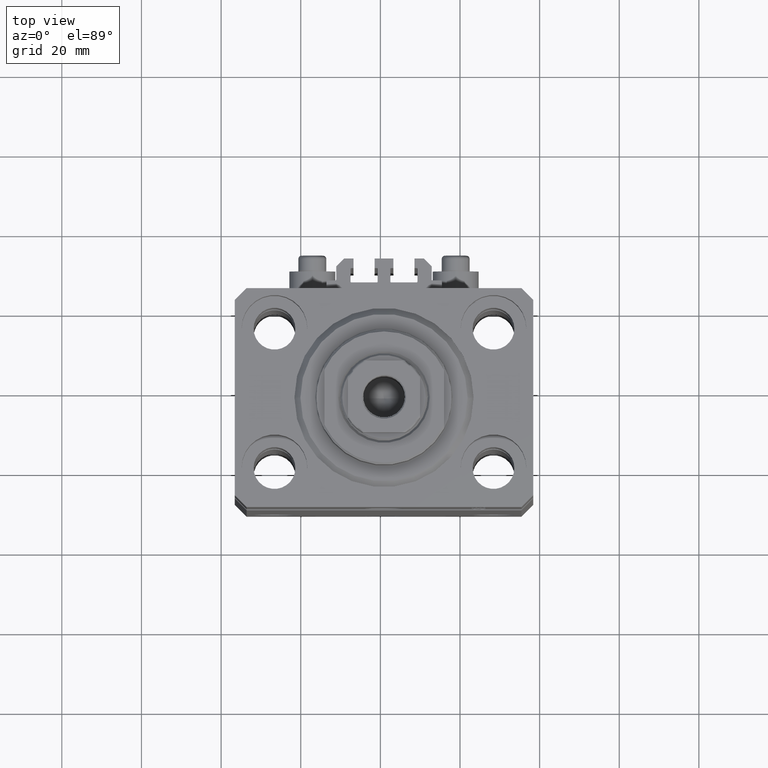
[diagram: clean part render]
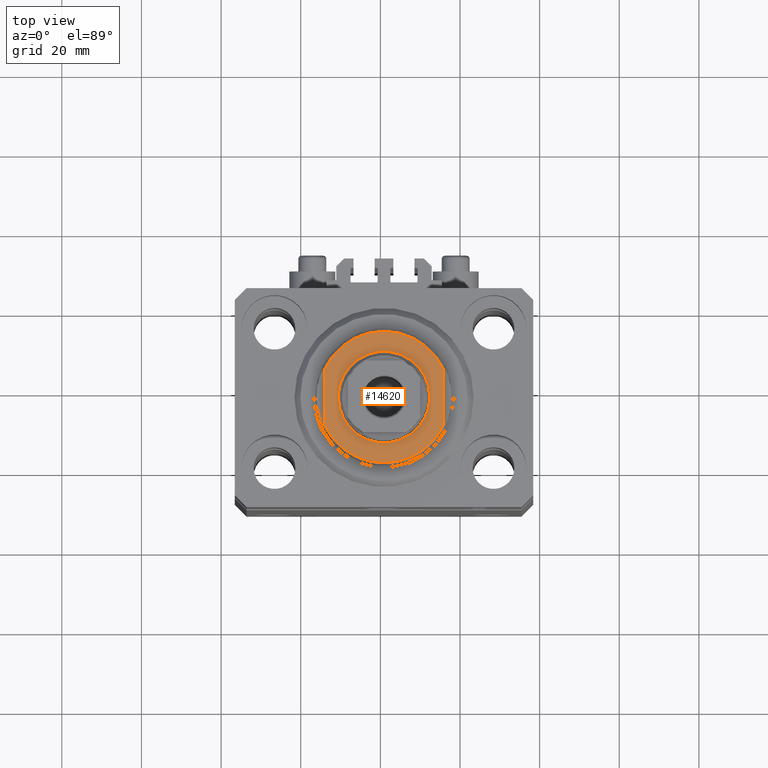
[diagram: same view with one face highlighted and labeled with its STEP entity id]
A machine part, top view. The second image highlights one B-rep face of the part: STEP entity #14620.
In plain terms, the highlighted planar face has unit normal (0, 0, 1).
Its self-contained STEP definition (entity closure, byte-faithful):
#348 = AXIS2_PLACEMENT_3D ( 'NONE', #25707, #17791, #7041 ) ;
#1757 = DIRECTION ( 'NONE',  ( -1.000000000000000000, 0.000000000000000000, 0.000000000000000000 ) ) ;
#1916 = VERTEX_POINT ( 'NONE', #27202 ) ;
#1926 = DIRECTION ( 'NONE',  ( -1.000000000000000000, 0.000000000000000000, 0.000000000000000000 ) ) ;
#2043 = VERTEX_POINT ( 'NONE', #18310 ) ;
#2745 = CARTESIAN_POINT ( 'NONE',  ( 0.000000000000000000, 0.000000000000000000, -8.000000000000000000 ) ) ;
#2994 = DIRECTION ( 'NONE',  ( -1.000000000000000000, 0.000000000000000000, -0.000000000000000000 ) ) ;
#3282 = ORIENTED_EDGE ( 'NONE', *, *, #20680, .T. ) ;
#3696 = EDGE_CURVE ( 'NONE', #21424, #2043, #45911, .T. ) ;
#5536 = CARTESIAN_POINT ( 'NONE',  ( -11.50000000000000355, 0.000000000000000000, -8.000000000000000000 ) ) ;
#5855 = AXIS2_PLACEMENT_3D ( 'NONE', #41512, #34557, #1757 ) ;
#5928 = CARTESIAN_POINT ( 'NONE',  ( -15.00000000000000000, -42.42640687119285303, -8.000000000000000000 ) ) ;
#6040 = VERTEX_POINT ( 'NONE', #10299 ) ;
#6049 = AXIS2_PLACEMENT_3D ( 'NONE', #46238, #28031, #31156 ) ;
#6334 = FACE_OUTER_BOUND ( 'NONE', #21813, .T. ) ;
#6971 = DIRECTION ( 'NONE',  ( 0.000000000000000000, -1.000000000000000000, -0.000000000000000000 ) ) ;
#7041 = DIRECTION ( 'NONE',  ( -1.000000000000000000, 0.000000000000000000, 0.000000000000000000 ) ) ;
#10299 = CARTESIAN_POINT ( 'NONE',  ( 14.99999999999999645, 6.873863542433765517, -8.000000000000000000 ) ) ;
#12236 = VECTOR ( 'NONE', #6971, 1000.000000000000000 ) ;
#14486 = CARTESIAN_POINT ( 'NONE',  ( -14.99999999999999645, 6.873863542433765517, -8.000000000000000000 ) ) ;
#14620 = ADVANCED_FACE ( 'NONE', ( #35545, #6334 ), #46091, .T. ) ;
#15152 = EDGE_CURVE ( 'NONE', #27129, #34668, #38656, .T. ) ;
#15814 = CARTESIAN_POINT ( 'NONE',  ( 0.000000000000000000, 0.000000000000000000, -8.000000000000000000 ) ) ;
#17791 = DIRECTION ( 'NONE',  ( 0.000000000000000000, 0.000000000000000000, -1.000000000000000000 ) ) ;
#18310 = CARTESIAN_POINT ( 'NONE',  ( -14.99999999999999645, -6.873863542433765517, -8.000000000000000000 ) ) ;
#20094 = DIRECTION ( 'NONE',  ( -0.000000000000000000, -0.000000000000000000, 1.000000000000000000 ) ) ;
#20680 = EDGE_CURVE ( 'NONE', #21424, #6040, #30334, .T. ) ;
#21424 = VERTEX_POINT ( 'NONE', #14486 ) ;
#21799 = LINE ( 'NONE', #22511, #12236 ) ;
#21813 = EDGE_LOOP ( 'NONE', ( #3282, #40021, #28363, #36906 ) ) ;
#22511 = CARTESIAN_POINT ( 'NONE',  ( 15.00000000000000000, -42.42640687119285303, -8.000000000000000000 ) ) ;
#24934 = VECTOR ( 'NONE', #31535, 1000.000000000000000 ) ;
#25707 = CARTESIAN_POINT ( 'NONE',  ( 0.000000000000000000, 0.000000000000000000, -8.000000000000000000 ) ) ;
#27129 = VERTEX_POINT ( 'NONE', #5536 ) ;
#27195 = EDGE_CURVE ( 'NONE', #34668, #27129, #30535, .T. ) ;
#27202 = CARTESIAN_POINT ( 'NONE',  ( 14.99999999999999645, -6.873863542433765517, -8.000000000000000000 ) ) ;
#27218 = AXIS2_PLACEMENT_3D ( 'NONE', #15814, #20094, #1926 ) ;
#28031 = DIRECTION ( 'NONE',  ( -0.000000000000000000, -0.000000000000000000, 1.000000000000000000 ) ) ;
#28363 = ORIENTED_EDGE ( 'NONE', *, *, #40565, .T. ) ;
#29426 = EDGE_CURVE ( 'NONE', #6040, #1916, #21799, .T. ) ;
#30237 = AXIS2_PLACEMENT_3D ( 'NONE', #2745, #39866, #2994 ) ;
#30334 = CIRCLE ( 'NONE', #5855, 16.50000000000000000 ) ;
#30535 = CIRCLE ( 'NONE', #6049, 11.50000000000000355 ) ;
#31156 = DIRECTION ( 'NONE',  ( -1.000000000000000000, 0.000000000000000000, 0.000000000000000000 ) ) ;
#31288 = EDGE_LOOP ( 'NONE', ( #39636, #43548 ) ) ;
#31535 = DIRECTION ( 'NONE',  ( -0.000000000000000000, -1.000000000000000000, -0.000000000000000000 ) ) ;
#32595 = CARTESIAN_POINT ( 'NONE',  ( 11.50000000000000355, 1.408343819019456570E-15, -8.000000000000000000 ) ) ;
#34557 = DIRECTION ( 'NONE',  ( 0.000000000000000000, 0.000000000000000000, -1.000000000000000000 ) ) ;
#34668 = VERTEX_POINT ( 'NONE', #32595 ) ;
#35545 = FACE_BOUND ( 'NONE', #31288, .T. ) ;
#36906 = ORIENTED_EDGE ( 'NONE', *, *, #3696, .F. ) ;
#38656 = CIRCLE ( 'NONE', #27218, 11.50000000000000355 ) ;
#39636 = ORIENTED_EDGE ( 'NONE', *, *, #15152, .T. ) ;
#39866 = DIRECTION ( 'NONE',  ( 0.000000000000000000, 0.000000000000000000, -1.000000000000000000 ) ) ;
#40021 = ORIENTED_EDGE ( 'NONE', *, *, #29426, .T. ) ;
#40565 = EDGE_CURVE ( 'NONE', #1916, #2043, #44679, .T. ) ;
#41512 = CARTESIAN_POINT ( 'NONE',  ( 0.000000000000000000, 0.000000000000000000, -8.000000000000000000 ) ) ;
#43548 = ORIENTED_EDGE ( 'NONE', *, *, #27195, .T. ) ;
#44679 = CIRCLE ( 'NONE', #348, 16.50000000000000000 ) ;
#45911 = LINE ( 'NONE', #5928, #24934 ) ;
#46091 = PLANE ( 'NONE',  #30237 ) ;
#46238 = CARTESIAN_POINT ( 'NONE',  ( 0.000000000000000000, 0.000000000000000000, -8.000000000000000000 ) ) ;